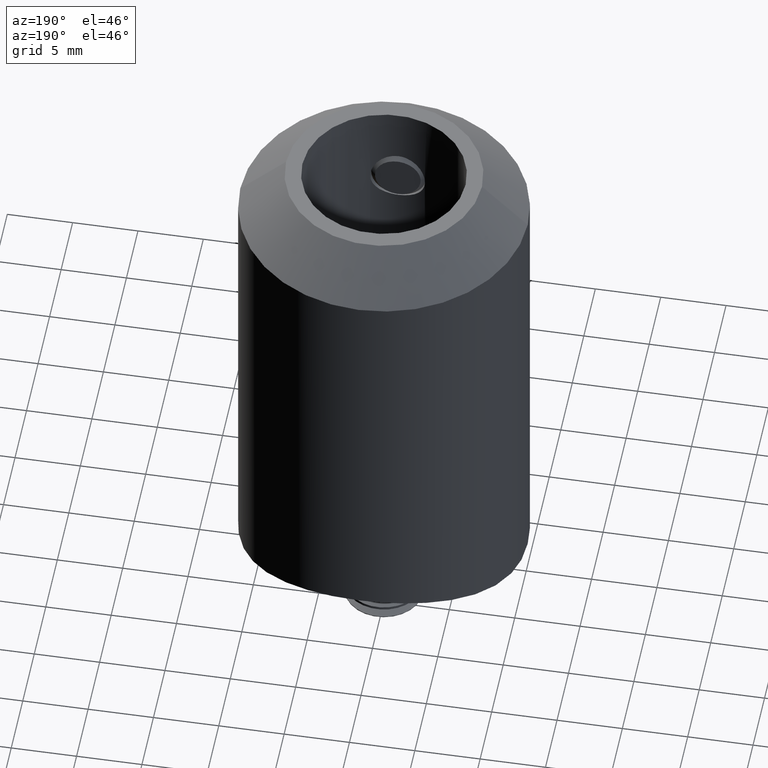
[diagram: clean part render]
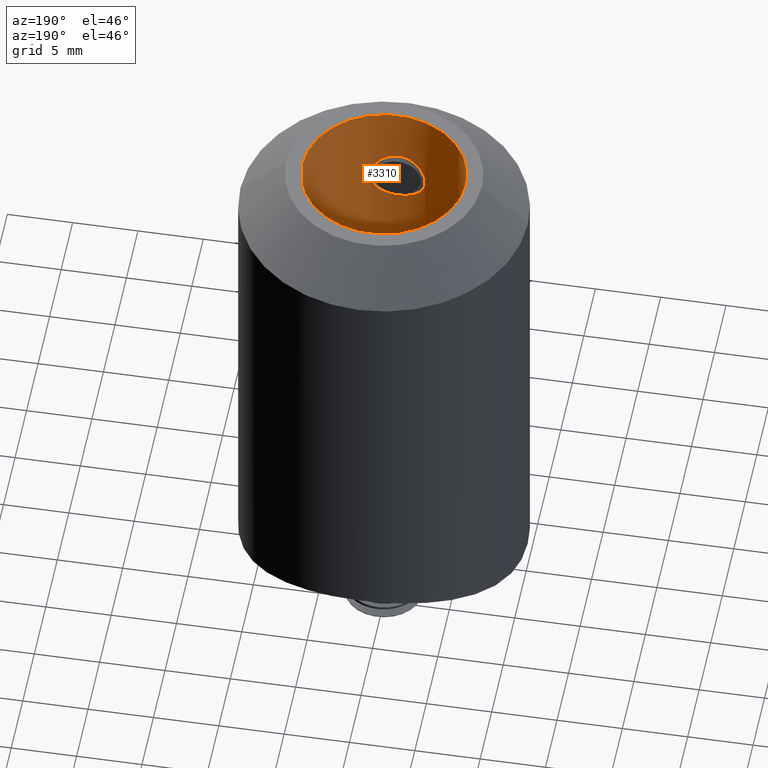
[diagram: same view with one face highlighted and labeled with its STEP entity id]
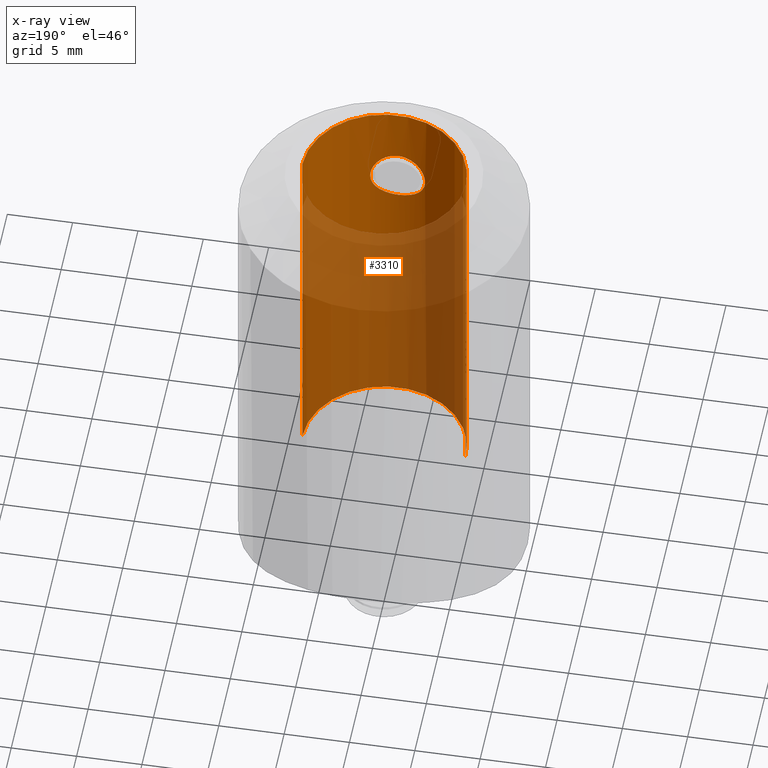
[diagram: x-ray of the same camera — body ghosted, the highlighted face saturated]
A machine part, auxiliary view. The second image highlights one B-rep face of the part: STEP entity #3310.
The next image is the same camera in x-ray: the body ghosted, the highlighted face saturated — about 68% of this face is hidden behind the body in this view.
In plain terms, the highlighted cylindrical surface (partial cylindrical patch) has radius 6.25 mm, axis along (-0, -0, -1).
Its self-contained STEP definition (entity closure, byte-faithful):
#91 = CARTESIAN_POINT ( 'NONE',  ( -6.250000000000000000, 0.000000000000000000, 0.000000000000000000 ) ) ;
#148 = LINE ( 'NONE', #17886, #17494 ) ;
#207 = VERTEX_POINT ( 'NONE', #1421 ) ;
#229 = CARTESIAN_POINT ( 'NONE',  ( -6.250000000000000000, -1.942524920933333049E-15, 0.000000000000000000 ) ) ;
#230 = EDGE_CURVE ( 'NONE', #7734, #1326, #16210, .T. ) ;
#264 = ORIENTED_EDGE ( 'NONE', *, *, #7275, .T. ) ;
#277 = CARTESIAN_POINT ( 'NONE',  ( 2.086020354233161900, -5.891675392019029012, 28.77823449408860768 ) ) ;
#295 = LINE ( 'NONE', #20920, #1605 ) ;
#319 = CARTESIAN_POINT ( 'NONE',  ( -6.249941087457022704, -0.02713675213675362588, 14.66018129006410398 ) ) ;
#354 = CARTESIAN_POINT ( 'NONE',  ( 0.6807774074885170057, -6.214132139573580460, 26.50865275162994905 ) ) ;
#363 = VECTOR ( 'NONE', #3498, 1000.000000000000000 ) ;
#383 = CARTESIAN_POINT ( 'NONE',  ( -6.250000000000000000, -1.152917720331509549E-15, 15.30872556765992698 ) ) ;
#392 = EDGE_CURVE ( 'NONE', #13887, #5053, #7921, .T. ) ;
#492 = ORIENTED_EDGE ( 'NONE', *, *, #21365, .T. ) ;
#550 = DIRECTION ( 'NONE',  ( -0.000000000000000000, -0.000000000000000000, -1.000000000000000000 ) ) ;
#711 = CARTESIAN_POINT ( 'NONE',  ( -6.250000000000000000, 0.000000000000000000, 0.000000000000000000 ) ) ;
#712 = CARTESIAN_POINT ( 'NONE',  ( -6.249999999999998224, -3.724880325109989135E-14, 20.90089087206140306 ) ) ;
#790 = LINE ( 'NONE', #16967, #9358 ) ;
#806 = VERTEX_POINT ( 'NONE', #8264 ) ;
#844 = CARTESIAN_POINT ( 'NONE',  ( 6.250000000000000000, 7.654042494670957606E-16, 0.000000000000000000 ) ) ;
#1003 = CARTESIAN_POINT ( 'NONE',  ( -6.250000000000000000, 0.000000000000000000, 5.499999999999998224 ) ) ;
#1005 = CARTESIAN_POINT ( 'NONE',  ( -6.250000000000000000, -2.031294470235149874E-15, 0.000000000000000000 ) ) ;
#1036 = CARTESIAN_POINT ( 'NONE',  ( -6.250000000000000000, -1.280788280683425470E-15, 12.28295940170940170 ) ) ;
#1188 = DIRECTION ( 'NONE',  ( -0.000000000000000000, -0.000000000000000000, -1.000000000000000000 ) ) ;
#1194 = EDGE_CURVE ( 'NONE', #17099, #18146, #18219, .T. ) ;
#1195 = B_SPLINE_CURVE_WITH_KNOTS ( 'NONE', 3,
 ( #14275, #6089, #7762, #6155, #17731, #7833, #19391, #8338, #11589, #21385, #19883, #3241, #18157, #14781, #21254, #5010, #8052, #8265, #16377, #19677, #11519, #13250, #4864, #19814, #19750, #11378, #1693, #3152, #4730, #13178, #10012, #9802 ),
 .UNSPECIFIED., .F., .F.,
 ( 4, 2, 2, 2, 2, 2, 2, 2, 2, 2, 2, 2, 2, 2, 2, 4 ),
 ( 1.156100791101205053E-18, 0.0004133772126065348991, 0.0008267544252130689308, 0.001240131637819602691, 0.001653508850426136994, 0.002480263275639197577, 0.002893640488245732313, 0.003307017700852267050, 0.003720394913458801786, 0.004133772126065336089, 0.004547149338671870392, 0.004960526551278404694, 0.005373903763884938997, 0.005787280976491473300, 0.006200658189098008470, 0.006614035401704542773 ),
 .UNSPECIFIED. ) ;
#1228 = CARTESIAN_POINT ( 'NONE',  ( -6.249945055681250139, -0.02622281934493954705, 17.96272777242339203 ) ) ;
#1245 = CARTESIAN_POINT ( 'NONE',  ( -6.250000000000000000, -2.266668275202088932E-15, 22.22857905982906956 ) ) ;
#1326 = VERTEX_POINT ( 'NONE', #17630 ) ;
#1376 = CARTESIAN_POINT ( 'NONE',  ( -6.249985271916317586, -0.01356837606837819725, 21.01124131944445139 ) ) ;
#1386 = B_SPLINE_CURVE_WITH_KNOTS ( 'NONE', 3,
 ( #7125, #20409, #10690, #9023 ),
 .UNSPECIFIED., .F., .F.,
 ( 4, 4 ),
 ( 0.000000000000000000, 0.0001370445804128089719 ),
 .UNSPECIFIED. ) ;
#1394 = VECTOR ( 'NONE', #3524, 1000.000000000000000 ) ;
#1420 = CARTESIAN_POINT ( 'NONE',  ( -6.249943906154057593, -0.02648757015918964258, 11.66743167533881831 ) ) ;
#1421 = CARTESIAN_POINT ( 'NONE',  ( -6.250000000000000000, -4.204135801831208538E-13, 16.42247196039267720 ) ) ;
#1458 = EDGE_CURVE ( 'NONE', #6805, #4404, #19014, .T. ) ;
#1465 = VERTEX_POINT ( 'NONE', #13142 ) ;
#1488 = B_SPLINE_CURVE_WITH_KNOTS ( 'NONE', 3,
 ( #7946, #1228, #21078, #16125 ),
 .UNSPECIFIED., .F., .F.,
 ( 4, 4 ),
 ( 0.000000000000000000, 0.0001370445804128096496 ),
 .UNSPECIFIED. ) ;
#1514 = CARTESIAN_POINT ( 'NONE',  ( -6.250000000000000000, -2.031294470235149874E-15, 20.38327991452992194 ) ) ;
#1525 = VECTOR ( 'NONE', #15609, 1000.000000000000000 ) ;
#1534 = VERTEX_POINT ( 'NONE', #3259 ) ;
#1554 = ORIENTED_EDGE ( 'NONE', *, *, #230, .F. ) ;
#1605 = VECTOR ( 'NONE', #4547, 1000.000000000000000 ) ;
#1644 = VERTEX_POINT ( 'NONE', #12294 ) ;
#1651 = EDGE_CURVE ( 'NONE', #8071, #20400, #13847, .T. ) ;
#1693 = CARTESIAN_POINT ( 'NONE',  ( -0.9329246632288857866, -6.181295248419109711, 30.38637383628275401 ) ) ;
#1786 = CARTESIAN_POINT ( 'NONE',  ( -6.250000000000000000, 0.000000000000000000, 0.000000000000000000 ) ) ;
#1820 = B_SPLINE_CURVE_WITH_KNOTS ( 'NONE', 3,
 ( #10675, #4153, #17372, #20672 ),
 .UNSPECIFIED., .F., .F.,
 ( 4, 4 ),
 ( 0.0003203089328097921337, 0.0004341580018001389490 ),
 .UNSPECIFIED. ) ;
#1846 = CARTESIAN_POINT ( 'NONE',  ( -6.250000000000000000, 0.000000000000000000, 0.000000000000000000 ) ) ;
#1895 = CARTESIAN_POINT ( 'NONE',  ( -6.250000000000000000, -5.417446971301949701E-13, 17.21357313100239494 ) ) ;
#1958 = VERTEX_POINT ( 'NONE', #13852 ) ;
#1982 = CARTESIAN_POINT ( 'NONE',  ( -6.250000000000000000, 0.000000000000000000, 0.000000000000000000 ) ) ;
#2020 = ORIENTED_EDGE ( 'NONE', *, *, #11682, .T. ) ;
#2039 = CARTESIAN_POINT ( 'NONE',  ( 0.5468688652298981934, -6.227495437057021910, 26.46779723067057688 ) ) ;
#2041 = DIRECTION ( 'NONE',  ( 0.000000000000000000, 0.000000000000000000, 1.000000000000000000 ) ) ;
#2115 = VERTEX_POINT ( 'NONE', #5405 ) ;
#2159 = CARTESIAN_POINT ( 'NONE',  ( -4.681114982632936812E-15, -6.250000000000000000, 26.40000000000000568 ) ) ;
#2201 = B_SPLINE_CURVE_WITH_KNOTS ( 'NONE', 3,
 ( #5750, #17319, #15894, #4245 ),
 .UNSPECIFIED., .F., .F.,
 ( 4, 4 ),
 ( 0.0002498041689422547803, 0.0003613808375801248448 ),
 .UNSPECIFIED. ) ;
#2217 = EDGE_CURVE ( 'NONE', #14885, #18146, #16415, .T. ) ;
#2233 = DIRECTION ( 'NONE',  ( -0.000000000000000000, -0.000000000000000000, -1.000000000000000000 ) ) ;
#2251 = CARTESIAN_POINT ( 'NONE',  ( 1.388929532163305280, -6.094521137183761539, 26.91905137954284655 ) ) ;
#2285 = ORIENTED_EDGE ( 'NONE', *, *, #10783, .T. ) ;
#2301 = CARTESIAN_POINT ( 'NONE',  ( -6.249985271916317586, -0.01356837606837819725, 21.01124131944445139 ) ) ;
#2367 = CARTESIAN_POINT ( 'NONE',  ( -6.250000000000000000, 0.000000000000000000, 0.000000000000000000 ) ) ;
#2374 = CARTESIAN_POINT ( 'NONE',  ( -6.250000000000000000, -0.01873701217902130553, 17.81439337356595232 ) ) ;
#2383 = VERTEX_POINT ( 'NONE', #4688 ) ;
#2465 = ORIENTED_EDGE ( 'NONE', *, *, #6430, .F. ) ;
#2523 = CARTESIAN_POINT ( 'NONE',  ( -6.249941087457022704, -0.02713675213675370568, 15.45774739583333535 ) ) ;
#2534 = CARTESIAN_POINT ( 'NONE',  ( -6.250000000000000000, -4.260575724689130706E-16, 16.95596604103382532 ) ) ;
#2546 = EDGE_CURVE ( 'NONE', #13887, #19140, #10996, .T. ) ;
#2587 = VECTOR ( 'NONE', #18853, 1000.000000000000000 ) ;
#2595 = CARTESIAN_POINT ( 'NONE',  ( -6.250000000000000000, 0.000000000000000000, 0.000000000000000000 ) ) ;
#2723 = LINE ( 'NONE', #20064, #12541 ) ;
#2749 = CARTESIAN_POINT ( 'NONE',  ( -6.250000000000000000, -1.942524920933333049E-15, 0.000000000000000000 ) ) ;
#2834 = EDGE_CURVE ( 'NONE', #19723, #17115, #17184, .T. ) ;
#2850 = VERTEX_POINT ( 'NONE', #20487 ) ;
#2879 = LINE ( 'NONE', #16390, #15549 ) ;
#2903 = LINE ( 'NONE', #14692, #19941 ) ;
#2918 = ORIENTED_EDGE ( 'NONE', *, *, #16151, .T. ) ;
#2964 = ORIENTED_EDGE ( 'NONE', *, *, #19077, .T. ) ;
#3008 = CARTESIAN_POINT ( 'NONE',  ( -6.250000000000000000, -2.130823964906883901E-15, 20.60037393162393471 ) ) ;
#3061 = B_SPLINE_CURVE_WITH_KNOTS ( 'NONE', 3,
 ( #12422, #2374, #4176, #9256 ),
 .UNSPECIFIED., .F., .F.,
 ( 4, 4 ),
 ( 0.0004328732615700520907, 0.0005840191481782737622 ),
 .UNSPECIFIED. ) ;
#3092 = VERTEX_POINT ( 'NONE', #16426 ) ;
#3112 = ORIENTED_EDGE ( 'NONE', *, *, #2217, .F. ) ;
#3132 = VERTEX_POINT ( 'NONE', #11151 ) ;
#3152 = CARTESIAN_POINT ( 'NONE',  ( -0.6800321976848793248, -6.214202731284300008, 30.49155991312958136 ) ) ;
#3155 = ORIENTED_EDGE ( 'NONE', *, *, #9074, .T. ) ;
#3156 = LINE ( 'NONE', #2749, #19656 ) ;
#3210 = DIRECTION ( 'NONE',  ( -0.000000000000000000, -0.000000000000000000, -1.000000000000000000 ) ) ;
#3217 = VERTEX_POINT ( 'NONE', #17898 ) ;
#3241 = CARTESIAN_POINT ( 'NONE',  ( -1.991178804980828332, -5.924589297797766996, 27.81891842917154634 ) ) ;
#3259 = CARTESIAN_POINT ( 'NONE',  ( -6.250000000000000000, -1.280788280683425470E-15, 12.37793803418803407 ) ) ;
#3310 = ADVANCED_FACE ( 'NONE', ( #10976, #4265 ), #6544, .F. ) ;
#3358 = EDGE_CURVE ( 'NONE', #11071, #806, #19222, .T. ) ;
#3375 = ORIENTED_EDGE ( 'NONE', *, *, #2546, .F. ) ;
#3407 = CARTESIAN_POINT ( 'NONE',  ( -6.250000000000000000, -0.01847626381545804108, 17.17373497681246519 ) ) ;
#3429 = CARTESIAN_POINT ( 'NONE',  ( -6.249999999999998224, -3.650712002666034461E-16, 14.51068119843388970 ) ) ;
#3450 = EDGE_CURVE ( 'NONE', #15469, #9133, #1195, .T. ) ;
#3498 = DIRECTION ( 'NONE',  ( -0.000000000000000000, -0.000000000000000000, -1.000000000000000000 ) ) ;
#3517 = EDGE_CURVE ( 'NONE', #7800, #3092, #4483, .T. ) ;
#3524 = DIRECTION ( 'NONE',  ( -0.000000000000000000, -0.000000000000000000, -1.000000000000000000 ) ) ;
#3625 = CARTESIAN_POINT ( 'NONE',  ( 2.031951277812363621, -5.910540909916313090, 29.04778586744502888 ) ) ;
#3629 = CARTESIAN_POINT ( 'NONE',  ( -6.250000000000000000, 0.000000000000000000, 0.000000000000000000 ) ) ;
#3639 = AXIS2_PLACEMENT_3D ( 'NONE', #10632, #12307, #18783 ) ;
#3662 = ORIENTED_EDGE ( 'NONE', *, *, #15350, .T. ) ;
#3804 = VERTEX_POINT ( 'NONE', #15105 ) ;
#3840 = CARTESIAN_POINT ( 'NONE',  ( -6.249985271916317586, -0.01356837606837843317, 23.38570713141026047 ) ) ;
#3842 = CARTESIAN_POINT ( 'NONE',  ( 1.283154409619683634, -6.117951371905980373, 30.16797572121374316 ) ) ;
#3893 = ORIENTED_EDGE ( 'NONE', *, *, #9483, .T. ) ;
#3916 = CARTESIAN_POINT ( 'NONE',  ( -6.249999999999998224, -2.002597645545979577E-15, 17.76709145484414876 ) ) ;
#3969 = CARTESIAN_POINT ( 'NONE',  ( -6.249946148398608514, -0.02597115256177571357, 15.50798380961689382 ) ) ;
#3985 = CARTESIAN_POINT ( 'NONE',  ( -6.250000000000000000, -0.009247728742931015516, 20.93680722941473249 ) ) ;
#4032 = DIRECTION ( 'NONE',  ( 0.000000000000000000, 0.000000000000000000, 1.000000000000000000 ) ) ;
#4034 = CARTESIAN_POINT ( 'NONE',  ( -6.250000000000000000, -1.942524920933333049E-15, 19.39278846153846558 ) ) ;
#4051 = VECTOR ( 'NONE', #5549, 1000.000000000000000 ) ;
#4086 = EDGE_CURVE ( 'NONE', #3217, #10141, #11482, .T. ) ;
#4107 = CARTESIAN_POINT ( 'NONE',  ( -6.250000000000000000, -5.394640609197127665E-13, 11.84049620792546698 ) ) ;
#4153 = CARTESIAN_POINT ( 'NONE',  ( -6.250000000000000000, -0.009631595882840694386, 24.57085252118570295 ) ) ;
#4176 = CARTESIAN_POINT ( 'NONE',  ( -6.249943101731514794, -0.02667283895925389586, 17.86538791324039011 ) ) ;
#4181 = CARTESIAN_POINT ( 'NONE',  ( -6.249943101731514794, -0.02667283895925359402, 16.23718278503525880 ) ) ;
#4221 = ORIENTED_EDGE ( 'NONE', *, *, #18709, .F. ) ;
#4245 = CARTESIAN_POINT ( 'NONE',  ( -6.249985271916317586, -0.01356837606837843317, 23.38570713141026047 ) ) ;
#4249 = LINE ( 'NONE', #10599, #20509 ) ;
#4263 = ORIENTED_EDGE ( 'NONE', *, *, #7535, .F. ) ;
#4265 = FACE_OUTER_BOUND ( 'NONE', #17940, .T. ) ;
#4322 = CARTESIAN_POINT ( 'NONE',  ( -6.249945055681250139, -0.02622281934493955399, 14.70631751601313120 ) ) ;
#4325 = LINE ( 'NONE', #18836, #5865 ) ;
#4386 = ORIENTED_EDGE ( 'NONE', *, *, #19888, .F. ) ;
#4404 = VERTEX_POINT ( 'NONE', #11584 ) ;
#4483 = LINE ( 'NONE', #1982, #363 ) ;
#4547 = DIRECTION ( 'NONE',  ( 0.000000000000000000, 0.000000000000000000, 1.000000000000000000 ) ) ;
#4659 = B_SPLINE_CURVE_WITH_KNOTS ( 'NONE', 3,
 ( #383, #13414, #6892, #18468 ),
 .UNSPECIFIED., .F., .F.,
 ( 4, 4 ),
 ( 0.0004033329556207923571, 0.0005545384032736206965 ),
 .UNSPECIFIED. ) ;
#4688 = CARTESIAN_POINT ( 'NONE',  ( -6.250000000000001776, -1.361487870957804294E-15, 13.69407051282051135 ) ) ;
#4730 = CARTESIAN_POINT ( 'NONE',  ( -0.5489401249491113743, -6.227337935327997620, 30.53172353266019456 ) ) ;
#4776 = VECTOR ( 'NONE', #18862, 1000.000000000000000 ) ;
#4854 = CARTESIAN_POINT ( 'NONE',  ( -3.232964290594066295E-15, -6.250000000000000000, 30.59999999999999432 ) ) ;
#4864 = CARTESIAN_POINT ( 'NONE',  ( -1.581024548620139969, -6.047541939429930125, 29.88889684463689989 ) ) ;
#4944 = B_SPLINE_CURVE_WITH_KNOTS ( 'NONE', 3,
 ( #2301, #5755, #7489, #10770 ),
 .UNSPECIFIED., .F., .F.,
 ( 4, 4 ),
 ( 0.000000000000000000, 0.0001083318546686084854 ),
 .UNSPECIFIED. ) ;
#5010 = CARTESIAN_POINT ( 'NONE',  ( -2.100068717040726618, -5.886612896145843266, 28.63707101292968460 ) ) ;
#5019 = VERTEX_POINT ( 'NONE', #3840 ) ;
#5035 = VECTOR ( 'NONE', #6622, 1000.000000000000000 ) ;
#5053 = VERTEX_POINT ( 'NONE', #8912 ) ;
#5081 = EDGE_CURVE ( 'NONE', #3804, #15195, #14652, .T. ) ;
#5151 = VERTEX_POINT ( 'NONE', #4034 ) ;
#5155 = CARTESIAN_POINT ( 'NONE',  ( -6.250000000000000000, -2.559876786532332216E-15, 0.000000000000000000 ) ) ;
#5161 = ORIENTED_EDGE ( 'NONE', *, *, #5903, .T. ) ;
#5234 = DIRECTION ( 'NONE',  ( 0.000000000000000000, 0.000000000000000000, 1.000000000000000000 ) ) ;
#5273 = CARTESIAN_POINT ( 'NONE',  ( 2.100018874674550950, -5.886630676916387195, 28.63809192433770434 ) ) ;
#5301 = CARTESIAN_POINT ( 'NONE',  ( -6.249985271916317586, -0.01356837606837855807, 24.64820212339743932 ) ) ;
#5405 = CARTESIAN_POINT ( 'NONE',  ( -6.250000000000000000, -1.361487870957804294E-15, 12.97494658119657984 ) ) ;
#5408 = CARTESIAN_POINT ( 'NONE',  ( 1.388283807668770686, -6.094680465868980157, 30.08160507440587139 ) ) ;
#5549 = DIRECTION ( 'NONE',  ( -0.000000000000000000, -0.000000000000000000, -1.000000000000000000 ) ) ;
#5573 = DIRECTION ( 'NONE',  ( 0.000000000000000000, 0.000000000000000000, 1.000000000000000000 ) ) ;
#5597 = VECTOR ( 'NONE', #5573, 1000.000000000000000 ) ;
#5599 = DIRECTION ( 'NONE',  ( -0.000000000000000000, -0.000000000000000000, -1.000000000000000000 ) ) ;
#5674 = CARTESIAN_POINT ( 'NONE',  ( -6.250000000000000000, -2.266668275202088932E-15, 0.000000000000000000 ) ) ;
#5750 = CARTESIAN_POINT ( 'NONE',  ( -6.250000000000000000, -3.662496348544709915E-14, 23.27535668402721214 ) ) ;
#5755 = CARTESIAN_POINT ( 'NONE',  ( -6.249987420524911741, -0.01257866499286665329, 21.04769291354087812 ) ) ;
#5768 = DIRECTION ( 'NONE',  ( 0.000000000000000000, 0.000000000000000000, 1.000000000000000000 ) ) ;
#5800 = CARTESIAN_POINT ( 'NONE',  ( -6.250000000000000000, 0.000000000000000000, 0.000000000000000000 ) ) ;
#5863 = ORIENTED_EDGE ( 'NONE', *, *, #8388, .T. ) ;
#5865 = VECTOR ( 'NONE', #10481, 1000.000000000000000 ) ;
#5868 = DIRECTION ( 'NONE',  ( -0.000000000000000000, -0.000000000000000000, -1.000000000000000000 ) ) ;
#5903 = EDGE_CURVE ( 'NONE', #14885, #8415, #295, .T. ) ;
#5923 = ORIENTED_EDGE ( 'NONE', *, *, #9455, .T. ) ;
#5961 = CARTESIAN_POINT ( 'NONE',  ( -6.249944342028269872, -0.02638718275373420560, 11.75639544814020532 ) ) ;
#6071 = B_SPLINE_CURVE_WITH_KNOTS ( 'NONE', 3,
 ( #2523, #3969, #14153, #8966 ),
 .UNSPECIFIED., .F., .F.,
 ( 4, 4 ),
 ( 0.000000000000000000, 0.0001492847478538085189 ),
 .UNSPECIFIED. ) ;
#6089 = CARTESIAN_POINT ( 'NONE',  ( -0.1398491717611065888, -6.250000000000000888, 26.40000000000000568 ) ) ;
#6095 = EDGE_CURVE ( 'NONE', #17880, #5053, #2903, .T. ) ;
#6119 = CARTESIAN_POINT ( 'NONE',  ( -6.249999999999998224, -0.01873701217901987959, 14.55798311715569682 ) ) ;
#6155 = CARTESIAN_POINT ( 'NONE',  ( -0.5470025092208135042, -6.227485096039450774, 26.46782871189566677 ) ) ;
#6199 = DIRECTION ( 'NONE',  ( -0.000000000000000000, -0.000000000000000000, -1.000000000000000000 ) ) ;
#6362 = LINE ( 'NONE', #8999, #5597 ) ;
#6415 = DIRECTION ( 'NONE',  ( -0.000000000000000000, -0.000000000000000000, -1.000000000000000000 ) ) ;
#6430 = EDGE_CURVE ( 'NONE', #15507, #7800, #11687, .T. ) ;
#6456 = DIRECTION ( 'NONE',  ( -0.000000000000000000, -0.000000000000000000, -1.000000000000000000 ) ) ;
#6473 = EDGE_CURVE ( 'NONE', #2850, #8415, #13492, .T. ) ;
#6544 = CYLINDRICAL_SURFACE ( 'NONE', #15631, 6.250000000000000000 ) ;
#6622 = DIRECTION ( 'NONE',  ( -0.000000000000000000, -0.000000000000000000, -1.000000000000000000 ) ) ;
#6653 = CARTESIAN_POINT ( 'NONE',  ( -6.250000000000000000, -1.942524920933333049E-15, 19.48776709401709795 ) ) ;
#6691 = EDGE_LOOP ( 'NONE', ( #14865, #7550 ) ) ;
#6695 = LINE ( 'NONE', #844, #12900 ) ;
#6805 = VERTEX_POINT ( 'NONE', #20052 ) ;
#6811 = VECTOR ( 'NONE', #550, 1000.000000000000000 ) ;
#6817 = CARTESIAN_POINT ( 'NONE',  ( -6.250000000000000000, -2.395787619641094577E-15, 23.97889957264957417 ) ) ;
#6845 = VECTOR ( 'NONE', #9155, 1000.000000000000000 ) ;
#6892 = CARTESIAN_POINT ( 'NONE',  ( -6.249947452229577927, -0.02567086361504802502, 15.40687596471949483 ) ) ;
#6933 = CARTESIAN_POINT ( 'NONE',  ( 1.679134496625105388, -6.023525129769473629, 29.79063298823878014 ) ) ;
#6935 = CARTESIAN_POINT ( 'NONE',  ( -6.250000000000000000, -2.031294470235149874E-15, 19.70486111111111782 ) ) ;
#7010 = CARTESIAN_POINT ( 'NONE',  ( -6.250000000000000000, -2.266668275202088932E-15, 21.60443376068377219 ) ) ;
#7125 = CARTESIAN_POINT ( 'NONE',  ( -6.249941087457022704, -0.02713675213675378894, 16.28838641826922995 ) ) ;
#7231 = ORIENTED_EDGE ( 'NONE', *, *, #15879, .T. ) ;
#7275 = EDGE_CURVE ( 'NONE', #6805, #11673, #3156, .T. ) ;
#7280 = CARTESIAN_POINT ( 'NONE',  ( -6.250000000000000000, 0.000000000000000000, 0.000000000000000000 ) ) ;
#7313 = LINE ( 'NONE', #16746, #14817 ) ;
#7324 = DIRECTION ( 'NONE',  ( -0.000000000000000000, -0.000000000000000000, -1.000000000000000000 ) ) ;
#7325 = DIRECTION ( 'NONE',  ( -0.000000000000000000, -0.000000000000000000, -1.000000000000000000 ) ) ;
#7332 = VECTOR ( 'NONE', #9160, 1000.000000000000000 ) ;
#7348 = DIRECTION ( 'NONE',  ( -0.000000000000000000, -0.000000000000000000, -1.000000000000000000 ) ) ;
#7376 = CARTESIAN_POINT ( 'NONE',  ( -6.249987163406165891, -0.01269710130100408507, 20.97384982570186196 ) ) ;
#7489 = CARTESIAN_POINT ( 'NONE',  ( -6.250000000000006217, -0.009182073190710548713, 21.08373957310829283 ) ) ;
#7526 = EDGE_CURVE ( 'NONE', #8485, #7595, #9604, .T. ) ;
#7535 = EDGE_CURVE ( 'NONE', #8559, #15212, #2879, .T. ) ;
#7550 = ORIENTED_EDGE ( 'NONE', *, *, #17352, .F. ) ;
#7556 = ORIENTED_EDGE ( 'NONE', *, *, #10018, .F. ) ;
#7571 = CARTESIAN_POINT ( 'NONE',  ( -6.250000000000000000, -1.503906997850010252E-15, 16.13888632663901745 ) ) ;
#7595 = VERTEX_POINT ( 'NONE', #10258 ) ;
#7608 = B_SPLINE_CURVE_WITH_KNOTS ( 'NONE', 3,
 ( #14007, #5961, #20777, #4107 ),
 .UNSPECIFIED., .F., .F.,
 ( 4, 4 ),
 ( 0.000000000000000000, 0.0001316155542375974867 ),
 .UNSPECIFIED. ) ;
#7631 = EDGE_CURVE ( 'NONE', #13026, #20400, #790, .T. ) ;
#7722 = CARTESIAN_POINT ( 'NONE',  ( -6.250000000000000000, -2.266668275202088932E-15, 21.69941239316240456 ) ) ;
#7734 = VERTEX_POINT ( 'NONE', #15513 ) ;
#7762 = CARTESIAN_POINT ( 'NONE',  ( -0.2771663449979559490, -6.245315138861119664, 26.41382869675332756 ) ) ;
#7800 = VERTEX_POINT ( 'NONE', #9446 ) ;
#7833 = CARTESIAN_POINT ( 'NONE',  ( -0.9348764159771587590, -6.181011141645032403, 26.61454911738538343 ) ) ;
#7863 = VERTEX_POINT ( 'NONE', #19604 ) ;
#7871 = LINE ( 'NONE', #229, #20009 ) ;
#7889 = VECTOR ( 'NONE', #7324, 1000.000000000000000 ) ;
#7921 = LINE ( 'NONE', #10713, #19555 ) ;
#7940 = CARTESIAN_POINT ( 'NONE',  ( -6.249999999999998224, -3.650712002666034461E-16, 14.51068119843388970 ) ) ;
#7946 = CARTESIAN_POINT ( 'NONE',  ( -6.249941087457022704, -0.02713675213675394507, 17.91659154647436125 ) ) ;
#8014 = VERTEX_POINT ( 'NONE', #6653 ) ;
#8052 = CARTESIAN_POINT ( 'NONE',  ( -2.086156781590802645, -5.891627256037642368, 28.77737804672436894 ) ) ;
#8071 = VERTEX_POINT ( 'NONE', #7010 ) ;
#8100 = EDGE_CURVE ( 'NONE', #12127, #207, #16324, .T. ) ;
#8222 = LINE ( 'NONE', #1005, #10038 ) ;
#8264 = CARTESIAN_POINT ( 'NONE',  ( -6.250000000000000000, -4.183739248461324986E-14, 15.60445719933126618 ) ) ;
#8265 = CARTESIAN_POINT ( 'NONE',  ( -2.032022183795942016, -5.910516702118698618, 29.04760801924651048 ) ) ;
#8328 = ORIENTED_EDGE ( 'NONE', *, *, #20890, .F. ) ;
#8338 = CARTESIAN_POINT ( 'NONE',  ( -1.282672282118496154, -6.118060501284898756, 26.83161588268564302 ) ) ;
#8350 = DIRECTION ( 'NONE',  ( 0.000000000000000000, 0.000000000000000000, 1.000000000000000000 ) ) ;
#8364 = VECTOR ( 'NONE', #9465, 1000.000000000000000 ) ;
#8388 = EDGE_CURVE ( 'NONE', #7734, #13633, #4659, .T. ) ;
#8415 = VERTEX_POINT ( 'NONE', #16675 ) ;
#8450 = CARTESIAN_POINT ( 'NONE',  ( -6.250000000000007994, -0.009182073190707589275, 23.45820538507413033 ) ) ;
#8485 = VERTEX_POINT ( 'NONE', #1036 ) ;
#8535 = ORIENTED_EDGE ( 'NONE', *, *, #19718, .F. ) ;
#8559 = VERTEX_POINT ( 'NONE', #3008 ) ;
#8619 = CARTESIAN_POINT ( 'NONE',  ( 1.677601154600719013, -6.023902963499859098, 27.20781212300785867 ) ) ;
#8643 = ORIENTED_EDGE ( 'NONE', *, *, #18637, .T. ) ;
#8694 = CARTESIAN_POINT ( 'NONE',  ( 0.9336400211197708465, -6.181192761147428882, 30.38604162753917137 ) ) ;
#8810 = EDGE_CURVE ( 'NONE', #14980, #7863, #9584, .T. ) ;
#8912 = CARTESIAN_POINT ( 'NONE',  ( -6.250000000000000000, -2.395787619641094577E-15, 24.07387820512821008 ) ) ;
#8927 = VECTOR ( 'NONE', #15698, 1000.000000000000000 ) ;
#8966 = CARTESIAN_POINT ( 'NONE',  ( -6.250000000000000000, -4.183739248461324986E-14, 15.60445719933126618 ) ) ;
#8999 = CARTESIAN_POINT ( 'NONE',  ( -6.250000000000000000, -2.130823964906883901E-15, 0.000000000000000000 ) ) ;
#9023 = CARTESIAN_POINT ( 'NONE',  ( -6.250000000000000000, -4.204135801831208538E-13, 16.42247196039267720 ) ) ;
#9044 = CARTESIAN_POINT ( 'NONE',  ( -6.250000000000000000, 0.000000000000000000, 0.000000000000000000 ) ) ;
#9074 = EDGE_CURVE ( 'NONE', #10183, #4404, #1488, .T. ) ;
#9133 = VERTEX_POINT ( 'NONE', #21222 ) ;
#9155 = DIRECTION ( 'NONE',  ( -0.000000000000000000, -0.000000000000000000, -1.000000000000000000 ) ) ;
#9160 = DIRECTION ( 'NONE',  ( -0.000000000000000000, -0.000000000000000000, -1.000000000000000000 ) ) ;
#9256 = CARTESIAN_POINT ( 'NONE',  ( -6.249941087457022704, -0.02713675213675394507, 17.91659154647436125 ) ) ;
#9262 = ORIENTED_EDGE ( 'NONE', *, *, #1194, .T. ) ;
#9301 = CARTESIAN_POINT ( 'NONE',  ( -6.250000000000000000, -2.366197769873822171E-15, 23.06981837606837971 ) ) ;
#9343 = VECTOR ( 'NONE', #20307, 1000.000000000000000 ) ;
#9358 = VECTOR ( 'NONE', #15372, 1000.000000000000000 ) ;
#9414 = EDGE_CURVE ( 'NONE', #3804, #13422, #20397, .T. ) ;
#9437 = ORIENTED_EDGE ( 'NONE', *, *, #9636, .T. ) ;
#9446 = CARTESIAN_POINT ( 'NONE',  ( -6.250000000000000000, 0.000000000000000000, 35.00000000000000000 ) ) ;
#9455 = EDGE_CURVE ( 'NONE', #15195, #1465, #4944, .T. ) ;
#9465 = DIRECTION ( 'NONE',  ( -0.000000000000000000, -0.000000000000000000, -1.000000000000000000 ) ) ;
#9483 = EDGE_CURVE ( 'NONE', #15507, #17099, #6695, .T. ) ;
#9550 = CARTESIAN_POINT ( 'NONE',  ( -6.249941087457022704, -0.02713675213675362588, 14.66018129006410398 ) ) ;
#9584 = LINE ( 'NONE', #9044, #2587 ) ;
#9586 = ORIENTED_EDGE ( 'NONE', *, *, #20760, .T. ) ;
#9596 = CARTESIAN_POINT ( 'NONE',  ( -6.249941087457022704, -0.02713675213675333445, 11.71202757745726331 ) ) ;
#9604 = LINE ( 'NONE', #1786, #15026 ) ;
#9621 = DIRECTION ( 'NONE',  ( -1.000000000000000000, 0.000000000000000000, 0.000000000000000000 ) ) ;
#9636 = EDGE_CURVE ( 'NONE', #1958, #3132, #16878, .T. ) ;
#9693 = ORIENTED_EDGE ( 'NONE', *, *, #19148, .T. ) ;
#9696 = VERTEX_POINT ( 'NONE', #11464 ) ;
#9779 = ORIENTED_EDGE ( 'NONE', *, *, #10498, .T. ) ;
#9802 = CARTESIAN_POINT ( 'NONE',  ( -3.232964290594066295E-15, -6.250000000000000000, 30.59999999999999432 ) ) ;
#9924 = CARTESIAN_POINT ( 'NONE',  ( -6.249944342028268984, -0.02638718275373492725, 17.12947237121713329 ) ) ;
#10012 = CARTESIAN_POINT ( 'NONE',  ( -0.1377617610087926991, -6.250000000000001776, 30.60000000000001208 ) ) ;
#10018 = EDGE_CURVE ( 'NONE', #12704, #2383, #11091, .T. ) ;
#10038 = VECTOR ( 'NONE', #17626, 1000.000000000000000 ) ;
#10058 = VERTEX_POINT ( 'NONE', #19166 ) ;
#10141 = VERTEX_POINT ( 'NONE', #1245 ) ;
#10183 = VERTEX_POINT ( 'NONE', #17785 ) ;
#10193 = DIRECTION ( 'NONE',  ( 0.000000000000000000, 0.000000000000000000, 1.000000000000000000 ) ) ;
#10204 = VECTOR ( 'NONE', #7348, 1000.000000000000000 ) ;
#10224 = CARTESIAN_POINT ( 'NONE',  ( 0.5535094440402353877, -6.230685183296444052, 30.54425393108256159 ) ) ;
#10242 = EDGE_CURVE ( 'NONE', #14827, #18305, #16775, .T. ) ;
#10258 = CARTESIAN_POINT ( 'NONE',  ( -6.250000000000000000, -5.394640609197127665E-13, 11.84049620792546698 ) ) ;
#10323 = ORIENTED_EDGE ( 'NONE', *, *, #20611, .T. ) ;
#10361 = CARTESIAN_POINT ( 'NONE',  ( 0.2771608814677346544, -6.245313988912636560, 26.41383234201753538 ) ) ;
#10481 = DIRECTION ( 'NONE',  ( 0.000000000000000000, 0.000000000000000000, 1.000000000000000000 ) ) ;
#10498 = EDGE_CURVE ( 'NONE', #21347, #18305, #8222, .T. ) ;
#10513 = CARTESIAN_POINT ( 'NONE',  ( 2.032188127562319924, -5.910459894465165398, 27.95285669878814616 ) ) ;
#10526 = LINE ( 'NONE', #2367, #14144 ) ;
#10530 = B_SPLINE_CURVE_WITH_KNOTS ( 'NONE', 3,
 ( #7940, #6119, #13068, #9550 ),
 .UNSPECIFIED., .F., .F.,
 ( 4, 4 ),
 ( 0.0004328732615700767563, 0.0005840191481783224428 ),
 .UNSPECIFIED. ) ;
#10566 = ORIENTED_EDGE ( 'NONE', *, *, #20930, .F. ) ;
#10599 = CARTESIAN_POINT ( 'NONE',  ( -6.250000000000000000, 0.000000000000000000, 0.000000000000000000 ) ) ;
#10632 = CARTESIAN_POINT ( 'NONE',  ( 0.000000000000000000, 0.000000000000000000, 35.00000000000000000 ) ) ;
#10670 = VECTOR ( 'NONE', #17400, 1000.000000000000000 ) ;
#10675 = CARTESIAN_POINT ( 'NONE',  ( -6.250000000000000000, -8.597843665307237883E-14, 24.53352954719663614 ) ) ;
#10690 = CARTESIAN_POINT ( 'NONE',  ( -6.249999999999999112, -0.01874949122127342674, 16.38059750729106412 ) ) ;
#10713 = CARTESIAN_POINT ( 'NONE',  ( -6.250000000000000000, -2.395787619641094577E-15, 0.000000000000000000 ) ) ;
#10770 = CARTESIAN_POINT ( 'NONE',  ( -6.250000000000000000, 4.404129174523895018E-12, 21.11881288291180780 ) ) ;
#10774 = CARTESIAN_POINT ( 'NONE',  ( -6.250000000000000000, -0.01873701217902744645, 16.18618824536082101 ) ) ;
#10783 = EDGE_CURVE ( 'NONE', #18546, #1326, #11886, .T. ) ;
#10850 = VERTEX_POINT ( 'NONE', #20022 ) ;
#10976 = FACE_BOUND ( 'NONE', #6691, .T. ) ;
#10996 = LINE ( 'NONE', #19986, #1394 ) ;
#11028 = CARTESIAN_POINT ( 'NONE',  ( -6.250000000000000000, -1.070969345970040410E-15, 10.26127136752137048 ) ) ;
#11039 = CARTESIAN_POINT ( 'NONE',  ( -6.250000000000000000, 0.000000000000000000, 0.000000000000000000 ) ) ;
#11056 = CARTESIAN_POINT ( 'NONE',  ( -6.250000000000000000, 0.000000000000000000, 0.000000000000000000 ) ) ;
#11071 = VERTEX_POINT ( 'NONE', #15012 ) ;
#11091 = LINE ( 'NONE', #5800, #21397 ) ;
#11151 = CARTESIAN_POINT ( 'NONE',  ( -6.249941087457022704, -0.02713675213675333445, 11.71202757745726331 ) ) ;
#11257 = LINE ( 'NONE', #14261, #6845 ) ;
#11299 = EDGE_CURVE ( 'NONE', #14827, #15212, #4325, .T. ) ;
#11378 = CARTESIAN_POINT ( 'NONE',  ( -1.055817361523854192, -6.161256958402389294, 30.32041301452059656 ) ) ;
#11442 = VECTOR ( 'NONE', #8350, 1000.000000000000000 ) ;
#11464 = CARTESIAN_POINT ( 'NONE',  ( -6.249985271916317586, -0.01356837606837855807, 24.64820212339743932 ) ) ;
#11482 = LINE ( 'NONE', #11056, #8364 ) ;
#11519 = CARTESIAN_POINT ( 'NONE',  ( -1.820502482735359751, -5.979507314787017691, 29.55562087771018298 ) ) ;
#11531 = ORIENTED_EDGE ( 'NONE', *, *, #16727, .T. ) ;
#11584 = CARTESIAN_POINT ( 'NONE',  ( -6.250000000000000000, -4.202026689792545330E-13, 18.05067708859780495 ) ) ;
#11589 = CARTESIAN_POINT ( 'NONE',  ( -1.389530664248857628, -6.094381485851283031, 26.91959552000053790 ) ) ;
#11673 = VERTEX_POINT ( 'NONE', #21258 ) ;
#11682 = EDGE_CURVE ( 'NONE', #14980, #17115, #148, .T. ) ;
#11687 = CIRCLE ( 'NONE', #3639, 6.250000000000000000 ) ;
#11694 = LINE ( 'NONE', #91, #14540 ) ;
#11732 = ORIENTED_EDGE ( 'NONE', *, *, #11299, .T. ) ;
#11749 = ORIENTED_EDGE ( 'NONE', *, *, #1651, .T. ) ;
#11851 = ORIENTED_EDGE ( 'NONE', *, *, #1458, .F. ) ;
#11868 = CARTESIAN_POINT ( 'NONE',  ( 1.991316365880859918, -5.924544185841607913, 27.81925910369733757 ) ) ;
#11886 = B_SPLINE_CURVE_WITH_KNOTS ( 'NONE', 3,
 ( #14225, #4322, #16106, #14507 ),
 .UNSPECIFIED., .F., .F.,
 ( 4, 4 ),
 ( 0.000000000000000000, 0.0001370445804128000815 ),
 .UNSPECIFIED. ) ;
#11905 = EDGE_CURVE ( 'NONE', #8559, #13422, #6362, .T. ) ;
#11946 = CARTESIAN_POINT ( 'NONE',  ( 1.833429633678348436, -5.976060114691638780, 27.44003211084209326 ) ) ;
#11947 = CARTESIAN_POINT ( 'NONE',  ( -6.250000000000000000, -2.266668275202088932E-15, 0.000000000000000000 ) ) ;
#12120 = CARTESIAN_POINT ( 'NONE',  ( 0.000000000000000000, 0.000000000000000000, 0.000000000000000000 ) ) ;
#12127 = VERTEX_POINT ( 'NONE', #2534 ) ;
#12193 = CARTESIAN_POINT ( 'NONE',  ( -6.249987215373157490, -0.01267316380663488160, 24.68655066500394213 ) ) ;
#12275 = LINE ( 'NONE', #13984, #7332 ) ;
#12294 = CARTESIAN_POINT ( 'NONE',  ( -6.250000000000000000, -2.559876786532332216E-15, 25.59353632478633145 ) ) ;
#12307 = DIRECTION ( 'NONE',  ( -0.000000000000000000, -0.000000000000000000, -1.000000000000000000 ) ) ;
#12342 = CARTESIAN_POINT ( 'NONE',  ( -6.249941087457022704, -0.02713675213675386527, 17.08510450053419305 ) ) ;
#12387 = VECTOR ( 'NONE', #3210, 1000.000000000000000 ) ;
#12422 = CARTESIAN_POINT ( 'NONE',  ( -6.249999999999998224, -2.002597645545979577E-15, 17.76709145484414876 ) ) ;
#12430 = CARTESIAN_POINT ( 'NONE',  ( -6.250000000000000000, -2.266668275202088932E-15, 0.000000000000000000 ) ) ;
#12541 = VECTOR ( 'NONE', #10193, 1000.000000000000000 ) ;
#12612 = ORIENTED_EDGE ( 'NONE', *, *, #20429, .T. ) ;
#12618 = CARTESIAN_POINT ( 'NONE',  ( -6.249941087457022704, -0.02713675213675370568, 15.45774739583333535 ) ) ;
#12704 = VERTEX_POINT ( 'NONE', #3429 ) ;
#12764 = LINE ( 'NONE', #11947, #20755 ) ;
#12900 = VECTOR ( 'NONE', #2233, 1000.000000000000000 ) ;
#12989 = VERTEX_POINT ( 'NONE', #3916 ) ;
#13026 = VERTEX_POINT ( 'NONE', #20513 ) ;
#13068 = CARTESIAN_POINT ( 'NONE',  ( -6.249943101731514794, -0.02667283895925342749, 14.60897765683013283 ) ) ;
#13142 = CARTESIAN_POINT ( 'NONE',  ( -6.250000000000000000, 4.404129174523895018E-12, 21.11881288291180780 ) ) ;
#13178 = CARTESIAN_POINT ( 'NONE',  ( -0.2769699878207707577, -6.245347119848571715, 30.58627021255417588 ) ) ;
#13225 = EDGE_CURVE ( 'NONE', #12704, #18546, #10530, .T. ) ;
#13228 = ORIENTED_EDGE ( 'NONE', *, *, #17803, .T. ) ;
#13250 = CARTESIAN_POINT ( 'NONE',  ( -1.668831644596322938, -6.023598422806003327, 29.78201625149495158 ) ) ;
#13306 = LINE ( 'NONE', #20642, #8927 ) ;
#13315 = CARTESIAN_POINT ( 'NONE',  ( 0.2754539012555117239, -6.249999999999999112, 30.59999999999999432 ) ) ;
#13380 = CARTESIAN_POINT ( 'NONE',  ( -6.250000000000000000, -8.597843665307237883E-14, 24.53352954719663614 ) ) ;
#13414 = CARTESIAN_POINT ( 'NONE',  ( -6.250000000000000000, -0.01860986523576161830, 15.35572893338322231 ) ) ;
#13422 = VERTEX_POINT ( 'NONE', #15168 ) ;
#13437 = CARTESIAN_POINT ( 'NONE',  ( -6.250000000000000000, -9.902697556956613883E-16, 9.230074786324786729 ) ) ;
#13448 = B_SPLINE_CURVE_WITH_KNOTS ( 'NONE', 3,
 ( #5301, #12193, #20115, #18537 ),
 .UNSPECIFIED., .F., .F.,
 ( 4, 4 ),
 ( 0.000000000000000000, 0.0001135698750731767992 ),
 .UNSPECIFIED. ) ;
#13492 = LINE ( 'NONE', #2595, #14280 ) ;
#13521 = EDGE_CURVE ( 'NONE', #2115, #2383, #2723, .T. ) ;
#13580 = EDGE_CURVE ( 'NONE', #19723, #5019, #2201, .T. ) ;
#13605 = CARTESIAN_POINT ( 'NONE',  ( 0.1398138339219174853, -6.250000000000001776, 26.40000000000001279 ) ) ;
#13633 = VERTEX_POINT ( 'NONE', #12618 ) ;
#13745 = CARTESIAN_POINT ( 'NONE',  ( -4.681114982632936812E-15, -6.250000000000000000, 26.40000000000000568 ) ) ;
#13831 = VERTEX_POINT ( 'NONE', #17805 ) ;
#13847 = LINE ( 'NONE', #5674, #20291 ) ;
#13852 = CARTESIAN_POINT ( 'NONE',  ( -6.250000000000000000, 3.324604317973128831E-17, 11.58288911795689735 ) ) ;
#13872 = CARTESIAN_POINT ( 'NONE',  ( 6.250000000000000000, 7.654042494670957606E-16, 35.00000000000000000 ) ) ;
#13887 = VERTEX_POINT ( 'NONE', #6817 ) ;
#13930 = CARTESIAN_POINT ( 'NONE',  ( -6.250000000000000000, 0.000000000000000000, 0.000000000000000000 ) ) ;
#13984 = CARTESIAN_POINT ( 'NONE',  ( -6.250000000000000000, 0.000000000000000000, 0.000000000000000000 ) ) ;
#14007 = CARTESIAN_POINT ( 'NONE',  ( -6.249941087457022704, -0.02713675213675333445, 11.71202757745726331 ) ) ;
#14013 = ORIENTED_EDGE ( 'NONE', *, *, #11905, .T. ) ;
#14106 = ORIENTED_EDGE ( 'NONE', *, *, #8100, .F. ) ;
#14144 = VECTOR ( 'NONE', #5599, 1000.000000000000000 ) ;
#14153 = CARTESIAN_POINT ( 'NONE',  ( -6.250000000000000000, -0.01906524041618423357, 15.55796827458538623 ) ) ;
#14177 = ORIENTED_EDGE ( 'NONE', *, *, #392, .T. ) ;
#14225 = CARTESIAN_POINT ( 'NONE',  ( -6.249941087457022704, -0.02713675213675362588, 14.66018129006410398 ) ) ;
#14256 = B_SPLINE_CURVE_WITH_KNOTS ( 'NONE', 3,
 ( #4854, #13315, #10224, #8694, #15412, #3842, #5408, #6933, #17002, #20230, #3625, #277, #5273, #16932, #18512, #10513, #11868, #11946, #8619, #2251, #20160, #18649, #15258, #354, #2039, #10361, #13605, #13745 ),
 .UNSPECIFIED., .F., .F.,
 ( 4, 2, 2, 2, 2, 2, 2, 2, 2, 2, 2, 2, 2, 4 ),
 ( 0.006614035401704542773, 0.007440580918172907954, 0.007853853676407090978, 0.008267126434641274002, 0.009093671951109631377, 0.009506944709343810931, 0.009920217467577988751, 0.01033349022581216831, 0.01074676298404634786, 0.01157330850051469656, 0.01198658125874886918, 0.01239985401698304526, 0.01281312677521721961, 0.01322639953345139396 ),
 .UNSPECIFIED. ) ;
#14261 = CARTESIAN_POINT ( 'NONE',  ( -6.250000000000000000, 0.000000000000000000, 0.000000000000000000 ) ) ;
#14275 = CARTESIAN_POINT ( 'NONE',  ( -4.681114982632936812E-15, -6.250000000000000000, 26.40000000000000568 ) ) ;
#14280 = VECTOR ( 'NONE', #15467, 1000.000000000000000 ) ;
#14507 = CARTESIAN_POINT ( 'NONE',  ( -6.250000000000000000, -4.206158092992778180E-13, 14.79426683218754235 ) ) ;
#14540 = VECTOR ( 'NONE', #6456, 1000.000000000000000 ) ;
#14652 = B_SPLINE_CURVE_WITH_KNOTS ( 'NONE', 3,
 ( #712, #3985, #7376, #18936 ),
 .UNSPECIFIED., .F., .F.,
 ( 4, 4 ),
 ( 0.0002498041689422562982, 0.0003613808375801251700 ),
 .UNSPECIFIED. ) ;
#14683 = ORIENTED_EDGE ( 'NONE', *, *, #15522, .T. ) ;
#14689 = ORIENTED_EDGE ( 'NONE', *, *, #7631, .F. ) ;
#14692 = CARTESIAN_POINT ( 'NONE',  ( -6.250000000000000000, 0.000000000000000000, 0.000000000000000000 ) ) ;
#14781 = CARTESIAN_POINT ( 'NONE',  ( -2.086368221085268537, -5.891552865903615377, 28.22387998735171166 ) ) ;
#14817 = VECTOR ( 'NONE', #5234, 1000.000000000000000 ) ;
#14827 = VERTEX_POINT ( 'NONE', #18197 ) ;
#14838 = CARTESIAN_POINT ( 'NONE',  ( -6.249941087457022704, -0.02713675213675386527, 17.08510450053419305 ) ) ;
#14865 = ORIENTED_EDGE ( 'NONE', *, *, #3450, .F. ) ;
#14885 = VERTEX_POINT ( 'NONE', #13437 ) ;
#14894 = ORIENTED_EDGE ( 'NONE', *, *, #10242, .F. ) ;
#14980 = VERTEX_POINT ( 'NONE', #15462 ) ;
#14981 = EDGE_CURVE ( 'NONE', #1958, #21151, #19989, .T. ) ;
#15012 = CARTESIAN_POINT ( 'NONE',  ( -6.250000000000000000, -1.503906997850010252E-15, 16.13888632663901745 ) ) ;
#15026 = VECTOR ( 'NONE', #18250, 1000.000000000000000 ) ;
#15105 = CARTESIAN_POINT ( 'NONE',  ( -6.249999999999998224, -3.724880325109989135E-14, 20.90089087206140306 ) ) ;
#15168 = CARTESIAN_POINT ( 'NONE',  ( -6.250000000000000000, -2.130823964906883901E-15, 20.69535256410257062 ) ) ;
#15195 = VERTEX_POINT ( 'NONE', #1376 ) ;
#15212 = VERTEX_POINT ( 'NONE', #1514 ) ;
#15258 = CARTESIAN_POINT ( 'NONE',  ( 0.9347243460232056433, -6.181034421808344170, 26.61447298107684034 ) ) ;
#15350 = EDGE_CURVE ( 'NONE', #5019, #19140, #18141, .T. ) ;
#15367 = DIRECTION ( 'NONE',  ( -1.000000000000000000, 0.000000000000000000, 0.000000000000000000 ) ) ;
#15372 = DIRECTION ( 'NONE',  ( -0.000000000000000000, -0.000000000000000000, -1.000000000000000000 ) ) ;
#15412 = CARTESIAN_POINT ( 'NONE',  ( 1.056458130331059175, -6.161145222017585077, 30.32003419317944548 ) ) ;
#15462 = CARTESIAN_POINT ( 'NONE',  ( -6.250000000000000000, -2.366197769873822171E-15, 22.97483974358974734 ) ) ;
#15467 = DIRECTION ( 'NONE',  ( -0.000000000000000000, -0.000000000000000000, -1.000000000000000000 ) ) ;
#15469 = VERTEX_POINT ( 'NONE', #2159 ) ;
#15507 = VERTEX_POINT ( 'NONE', #13872 ) ;
#15513 = CARTESIAN_POINT ( 'NONE',  ( -6.250000000000000000, -1.152917720331509549E-15, 15.30872556765992698 ) ) ;
#15522 = EDGE_CURVE ( 'NONE', #13633, #806, #6071, .T. ) ;
#15549 = VECTOR ( 'NONE', #16526, 1000.000000000000000 ) ;
#15609 = DIRECTION ( 'NONE',  ( -0.000000000000000000, -0.000000000000000000, -1.000000000000000000 ) ) ;
#15631 = AXIS2_PLACEMENT_3D ( 'NONE', #12120, #20828, #15367 ) ;
#15698 = DIRECTION ( 'NONE',  ( 0.000000000000000000, 0.000000000000000000, 1.000000000000000000 ) ) ;
#15726 = CARTESIAN_POINT ( 'NONE',  ( -6.249999999999998224, -0.01763766002864461738, 16.99613657266850453 ) ) ;
#15814 = EDGE_CURVE ( 'NONE', #1644, #3092, #19457, .T. ) ;
#15879 = EDGE_CURVE ( 'NONE', #2850, #21151, #7313, .T. ) ;
#15894 = CARTESIAN_POINT ( 'NONE',  ( -6.249987163406165891, -0.01269710130100431059, 23.34831563766767104 ) ) ;
#15942 = CARTESIAN_POINT ( 'NONE',  ( -6.249943906154056705, -0.02648757015919040933, 17.04050859841575161 ) ) ;
#15974 = DIRECTION ( 'NONE',  ( 0.000000000000000000, 0.000000000000000000, 1.000000000000000000 ) ) ;
#15988 = ORIENTED_EDGE ( 'NONE', *, *, #6473, .F. ) ;
#16106 = CARTESIAN_POINT ( 'NONE',  ( -6.249999999999999112, -0.01874949122128290527, 14.75239237908593104 ) ) ;
#16118 = CARTESIAN_POINT ( 'NONE',  ( -6.250000000000000000, -2.031294470235149874E-15, 19.79983974358975019 ) ) ;
#16125 = CARTESIAN_POINT ( 'NONE',  ( -6.250000000000000000, -4.202026689792545330E-13, 18.05067708859780495 ) ) ;
#16151 = EDGE_CURVE ( 'NONE', #12127, #21131, #16354, .T. ) ;
#16210 = LINE ( 'NONE', #16843, #4051 ) ;
#16273 = ORIENTED_EDGE ( 'NONE', *, *, #2834, .F. ) ;
#16293 = CARTESIAN_POINT ( 'NONE',  ( -6.249941087457022704, -0.02713675213675386527, 17.08510450053419305 ) ) ;
#16324 = LINE ( 'NONE', #3629, #9343 ) ;
#16354 = B_SPLINE_CURVE_WITH_KNOTS ( 'NONE', 3,
 ( #20605, #15726, #15942, #12342 ),
 .UNSPECIFIED., .F., .F.,
 ( 4, 4 ),
 ( 0.0006085833851632853776, 0.0007389834457091419258 ),
 .UNSPECIFIED. ) ;
#16377 = CARTESIAN_POINT ( 'NONE',  ( -1.991998142174518316, -5.924320343051245885, 29.17904070399740490 ) ) ;
#16390 = CARTESIAN_POINT ( 'NONE',  ( -6.250000000000000000, 0.000000000000000000, 0.000000000000000000 ) ) ;
#16415 = LINE ( 'NONE', #711, #4776 ) ;
#16426 = CARTESIAN_POINT ( 'NONE',  ( -6.250000000000000000, -2.559876786532332216E-15, 25.68851495726496381 ) ) ;
#16455 = DIRECTION ( 'NONE',  ( 0.000000000000000000, 0.000000000000000000, 1.000000000000000000 ) ) ;
#16526 = DIRECTION ( 'NONE',  ( -0.000000000000000000, -0.000000000000000000, -1.000000000000000000 ) ) ;
#16543 = CARTESIAN_POINT ( 'NONE',  ( -6.250000000000000000, 0.000000000000000000, 0.000000000000000000 ) ) ;
#16675 = CARTESIAN_POINT ( 'NONE',  ( -6.250000000000001776, -9.902697556956613883E-16, 9.949198717948716464 ) ) ;
#16698 = EDGE_CURVE ( 'NONE', #11071, #10850, #21162, .T. ) ;
#16727 = EDGE_CURVE ( 'NONE', #13026, #10141, #20972, .T. ) ;
#16746 = CARTESIAN_POINT ( 'NONE',  ( -6.250000000000000000, -1.070969345970040410E-15, 0.000000000000000000 ) ) ;
#16775 = LINE ( 'NONE', #21374, #12387 ) ;
#16843 = CARTESIAN_POINT ( 'NONE',  ( -6.250000000000000000, 0.000000000000000000, 0.000000000000000000 ) ) ;
#16878 = B_SPLINE_CURVE_WITH_KNOTS ( 'NONE', 3,
 ( #21123, #19691, #1420, #9596 ),
 .UNSPECIFIED., .F., .F.,
 ( 4, 4 ),
 ( 0.0006085833851632783302, 0.0007389834457091191576 ),
 .UNSPECIFIED. ) ;
#16918 = EDGE_CURVE ( 'NONE', #21347, #8014, #11694, .T. ) ;
#16932 = CARTESIAN_POINT ( 'NONE',  ( 2.099981086174654621, -5.886644157591924831, 28.36133460682143337 ) ) ;
#16967 = CARTESIAN_POINT ( 'NONE',  ( -6.250000000000000000, 0.000000000000000000, 0.000000000000000000 ) ) ;
#17002 = CARTESIAN_POINT ( 'NONE',  ( 1.832844012027486924, -5.976256518225836700, 29.56161456346993077 ) ) ;
#17077 = ORIENTED_EDGE ( 'NONE', *, *, #5081, .T. ) ;
#17093 = ORIENTED_EDGE ( 'NONE', *, *, #16698, .T. ) ;
#17099 = VERTEX_POINT ( 'NONE', #20754 ) ;
#17115 = VERTEX_POINT ( 'NONE', #9301 ) ;
#17184 = LINE ( 'NONE', #13930, #10204 ) ;
#17319 = CARTESIAN_POINT ( 'NONE',  ( -6.250000000000000000, -0.009247728742926933712, 23.31127304138054868 ) ) ;
#17352 = EDGE_CURVE ( 'NONE', #9133, #15469, #14256, .T. ) ;
#17372 = CARTESIAN_POINT ( 'NONE',  ( -6.249986974965366926, -0.01278390256778362717, 24.60938789656007586 ) ) ;
#17400 = DIRECTION ( 'NONE',  ( 0.000000000000000000, 0.000000000000000000, 1.000000000000000000 ) ) ;
#17470 = CARTESIAN_POINT ( 'NONE',  ( -6.250000000000000000, 4.416352071711011386E-12, 23.49327869487765952 ) ) ;
#17494 = VECTOR ( 'NONE', #17801, 1000.000000000000000 ) ;
#17589 = ORIENTED_EDGE ( 'NONE', *, *, #20931, .T. ) ;
#17603 = ORIENTED_EDGE ( 'NONE', *, *, #6095, .F. ) ;
#17626 = DIRECTION ( 'NONE',  ( 0.000000000000000000, 0.000000000000000000, 1.000000000000000000 ) ) ;
#17629 = ORIENTED_EDGE ( 'NONE', *, *, #15814, .T. ) ;
#17630 = CARTESIAN_POINT ( 'NONE',  ( -6.250000000000000000, -4.206158092992778180E-13, 14.79426683218754235 ) ) ;
#17707 = ORIENTED_EDGE ( 'NONE', *, *, #3358, .F. ) ;
#17731 = CARTESIAN_POINT ( 'NONE',  ( -0.6809573174596500467, -6.214112147208842529, 26.50871496874487221 ) ) ;
#17746 = ORIENTED_EDGE ( 'NONE', *, *, #3517, .F. ) ;
#17782 = AXIS2_PLACEMENT_3D ( 'NONE', #19288, #6199, #9621 ) ;
#17785 = CARTESIAN_POINT ( 'NONE',  ( -6.249941087457022704, -0.02713675213675394507, 17.91659154647436125 ) ) ;
#17801 = DIRECTION ( 'NONE',  ( 0.000000000000000000, 0.000000000000000000, 1.000000000000000000 ) ) ;
#17803 = EDGE_CURVE ( 'NONE', #21131, #10058, #19373, .T. ) ;
#17805 = CARTESIAN_POINT ( 'NONE',  ( -6.250000000000000000, 6.407740612628619586E-12, 24.76120711282812081 ) ) ;
#17880 = VERTEX_POINT ( 'NONE', #13380 ) ;
#17886 = CARTESIAN_POINT ( 'NONE',  ( -6.250000000000000000, -2.366197769873822171E-15, 0.000000000000000000 ) ) ;
#17898 = CARTESIAN_POINT ( 'NONE',  ( -6.250000000000000000, -2.266668275202088932E-15, 22.66276709401710221 ) ) ;
#17940 = EDGE_LOOP ( 'NONE', ( #2465, #3893, #9262, #3112, #5161, #15988, #7231, #20169, #9437, #9693, #18161, #12612, #8328, #21009, #7556, #19277, #2285, #1554, #5863, #14683, #17707, #17093, #8643, #14106, #2918, #13228, #4386, #2964, #3155, #11851, #264, #8535, #10323, #18402, #9779, #14894, #11732, #4263, #14013, #20505, #17077, #5923, #4221, #11749, #14689, #11531, #18662, #492, #18663, #2020, #16273, #19535, #3662, #3375, #14177, #17603, #17589, #9586, #10566, #17629, #17746 ) ) ;
#18131 = CARTESIAN_POINT ( 'NONE',  ( -6.249985271916317586, -0.01356837606837843317, 23.38570713141026047 ) ) ;
#18141 = B_SPLINE_CURVE_WITH_KNOTS ( 'NONE', 3,
 ( #18131, #18417, #8450, #19995 ),
 .UNSPECIFIED., .F., .F.,
 ( 4, 4 ),
 ( 0.000000000000000000, 0.0001083318546686517315 ),
 .UNSPECIFIED. ) ;
#18146 = VERTEX_POINT ( 'NONE', #1003 ) ;
#18157 = CARTESIAN_POINT ( 'NONE',  ( -2.032047115787772640, -5.910508611355727027, 27.95231474863934196 ) ) ;
#18161 = ORIENTED_EDGE ( 'NONE', *, *, #7526, .F. ) ;
#18197 = CARTESIAN_POINT ( 'NONE',  ( -6.250000000000000000, -2.031294470235149874E-15, 20.28830128205128602 ) ) ;
#18219 = CIRCLE ( 'NONE', #17782, 6.250000000000000000 ) ;
#18250 = DIRECTION ( 'NONE',  ( -0.000000000000000000, -0.000000000000000000, -1.000000000000000000 ) ) ;
#18305 = VERTEX_POINT ( 'NONE', #16118 ) ;
#18308 = CARTESIAN_POINT ( 'NONE',  ( -6.250000000000000000, -3.662496348544709915E-14, 23.27535668402721214 ) ) ;
#18402 = ORIENTED_EDGE ( 'NONE', *, *, #16918, .F. ) ;
#18417 = CARTESIAN_POINT ( 'NONE',  ( -6.249987420524911741, -0.01257866499286676085, 23.42215872550670142 ) ) ;
#18468 = CARTESIAN_POINT ( 'NONE',  ( -6.249941087457022704, -0.02713675213675370568, 15.45774739583333535 ) ) ;
#18512 = CARTESIAN_POINT ( 'NONE',  ( 2.086417744995437307, -5.891535092253511685, 28.22429114770394776 ) ) ;
#18537 = CARTESIAN_POINT ( 'NONE',  ( -6.250000000000000000, 6.407740612628619586E-12, 24.76120711282812081 ) ) ;
#18546 = VERTEX_POINT ( 'NONE', #319 ) ;
#18637 = EDGE_CURVE ( 'NONE', #10850, #207, #1386, .T. ) ;
#18649 = CARTESIAN_POINT ( 'NONE',  ( 1.054796682869352464, -6.161431727484913523, 26.67899931547247760 ) ) ;
#18662 = ORIENTED_EDGE ( 'NONE', *, *, #4086, .F. ) ;
#18663 = ORIENTED_EDGE ( 'NONE', *, *, #8810, .F. ) ;
#18709 = EDGE_CURVE ( 'NONE', #8071, #1465, #10526, .T. ) ;
#18783 = DIRECTION ( 'NONE',  ( -1.000000000000000000, 0.000000000000000000, 0.000000000000000000 ) ) ;
#18836 = CARTESIAN_POINT ( 'NONE',  ( -6.250000000000000000, -2.031294470235149874E-15, 0.000000000000000000 ) ) ;
#18846 = CARTESIAN_POINT ( 'NONE',  ( -6.250000000000000000, 0.000000000000000000, 0.000000000000000000 ) ) ;
#18853 = DIRECTION ( 'NONE',  ( -0.000000000000000000, -0.000000000000000000, -1.000000000000000000 ) ) ;
#18862 = DIRECTION ( 'NONE',  ( -0.000000000000000000, -0.000000000000000000, -1.000000000000000000 ) ) ;
#18936 = CARTESIAN_POINT ( 'NONE',  ( -6.249985271916317586, -0.01356837606837819725, 21.01124131944445139 ) ) ;
#19014 = LINE ( 'NONE', #16543, #5035 ) ;
#19077 = EDGE_CURVE ( 'NONE', #12989, #10183, #3061, .T. ) ;
#19140 = VERTEX_POINT ( 'NONE', #17470 ) ;
#19148 = EDGE_CURVE ( 'NONE', #3132, #7595, #7608, .T. ) ;
#19166 = CARTESIAN_POINT ( 'NONE',  ( -6.250000000000000000, -5.417446971301949701E-13, 17.21357313100239494 ) ) ;
#19222 = LINE ( 'NONE', #11039, #20275 ) ;
#19277 = ORIENTED_EDGE ( 'NONE', *, *, #13225, .T. ) ;
#19288 = CARTESIAN_POINT ( 'NONE',  ( 0.000000000000000000, 0.000000000000000000, 5.499999999999998224 ) ) ;
#19373 = B_SPLINE_CURVE_WITH_KNOTS ( 'NONE', 3,
 ( #14838, #9924, #3407, #1895 ),
 .UNSPECIFIED., .F., .F.,
 ( 4, 4 ),
 ( 0.000000000000000000, 0.0001316155542375947490 ),
 .UNSPECIFIED. ) ;
#19391 = CARTESIAN_POINT ( 'NONE',  ( -1.055134711992556706, -6.161379976940708936, 26.67916379490898393 ) ) ;
#19457 = LINE ( 'NONE', #5155, #11442 ) ;
#19535 = ORIENTED_EDGE ( 'NONE', *, *, #13580, .T. ) ;
#19555 = VECTOR ( 'NONE', #5768, 1000.000000000000000 ) ;
#19604 = CARTESIAN_POINT ( 'NONE',  ( -6.250000000000000000, -2.266668275202088932E-15, 22.75774572649573813 ) ) ;
#19656 = VECTOR ( 'NONE', #15974, 1000.000000000000000 ) ;
#19677 = CARTESIAN_POINT ( 'NONE',  ( -1.885657171165436408, -5.959020486485167467, 29.43458542089228303 ) ) ;
#19691 = CARTESIAN_POINT ( 'NONE',  ( -6.250000000000000000, -0.01763766002864407614, 11.62305964959157123 ) ) ;
#19718 = EDGE_CURVE ( 'NONE', #5151, #11673, #20798, .T. ) ;
#19723 = VERTEX_POINT ( 'NONE', #18308 ) ;
#19750 = CARTESIAN_POINT ( 'NONE',  ( -1.282716395517583097, -6.118045133621313525, 30.16832026092160746 ) ) ;
#19814 = CARTESIAN_POINT ( 'NONE',  ( -1.387699951769310713, -6.094808526636656509, 30.08207519171539346 ) ) ;
#19883 = CARTESIAN_POINT ( 'NONE',  ( -1.833634788654213477, -5.975992719688997035, 27.44054541392978663 ) ) ;
#19888 = EDGE_CURVE ( 'NONE', #12989, #10058, #11257, .T. ) ;
#19941 = VECTOR ( 'NONE', #6415, 1000.000000000000000 ) ;
#19986 = CARTESIAN_POINT ( 'NONE',  ( -6.250000000000000000, 0.000000000000000000, 0.000000000000000000 ) ) ;
#19989 = LINE ( 'NONE', #7280, #6811 ) ;
#19995 = CARTESIAN_POINT ( 'NONE',  ( -6.250000000000000000, 4.416352071711011386E-12, 23.49327869487765952 ) ) ;
#20009 = VECTOR ( 'NONE', #16455, 1000.000000000000000 ) ;
#20022 = CARTESIAN_POINT ( 'NONE',  ( -6.249941087457022704, -0.02713675213675378894, 16.28838641826922995 ) ) ;
#20052 = CARTESIAN_POINT ( 'NONE',  ( -6.250000000000000000, -1.942524920933333049E-15, 18.80934829059829383 ) ) ;
#20064 = CARTESIAN_POINT ( 'NONE',  ( -6.250000000000000000, -1.361487870957804294E-15, 0.000000000000000000 ) ) ;
#20115 = CARTESIAN_POINT ( 'NONE',  ( -6.250000000000009770, -0.009547924563101722537, 24.72448105206742142 ) ) ;
#20160 = CARTESIAN_POINT ( 'NONE',  ( 1.281697500500012632, -6.118258615967614666, 26.83090112562079455 ) ) ;
#20169 = ORIENTED_EDGE ( 'NONE', *, *, #14981, .F. ) ;
#20230 = CARTESIAN_POINT ( 'NONE',  ( 1.992013863949607888, -5.924313930899341329, 29.17894508561565559 ) ) ;
#20275 = VECTOR ( 'NONE', #1188, 1000.000000000000000 ) ;
#20291 = VECTOR ( 'NONE', #4032, 1000.000000000000000 ) ;
#20307 = DIRECTION ( 'NONE',  ( -0.000000000000000000, -0.000000000000000000, -1.000000000000000000 ) ) ;
#20397 = LINE ( 'NONE', #18846, #1525 ) ;
#20400 = VERTEX_POINT ( 'NONE', #7722 ) ;
#20409 = CARTESIAN_POINT ( 'NONE',  ( -6.249945055681250139, -0.02622281934493969971, 16.33452264421826072 ) ) ;
#20429 = EDGE_CURVE ( 'NONE', #8485, #1534, #13306, .T. ) ;
#20487 = CARTESIAN_POINT ( 'NONE',  ( -6.250000000000000000, -1.070969345970040410E-15, 10.16629273504273634 ) ) ;
#20505 = ORIENTED_EDGE ( 'NONE', *, *, #9414, .F. ) ;
#20509 = VECTOR ( 'NONE', #5868, 1000.000000000000000 ) ;
#20513 = CARTESIAN_POINT ( 'NONE',  ( -6.250000000000000000, -2.266668275202088932E-15, 22.13360042735043720 ) ) ;
#20605 = CARTESIAN_POINT ( 'NONE',  ( -6.250000000000000000, -4.260575724689130706E-16, 16.95596604103382532 ) ) ;
#20611 = EDGE_CURVE ( 'NONE', #5151, #8014, #7871, .T. ) ;
#20642 = CARTESIAN_POINT ( 'NONE',  ( -6.250000000000000000, -1.280788280683425470E-15, 0.000000000000000000 ) ) ;
#20672 = CARTESIAN_POINT ( 'NONE',  ( -6.249985271916317586, -0.01356837606837855807, 24.64820212339743932 ) ) ;
#20706 = CARTESIAN_POINT ( 'NONE',  ( -6.249941087457022704, -0.02713675213675378894, 16.28838641826922995 ) ) ;
#20754 = CARTESIAN_POINT ( 'NONE',  ( 6.250000000000000000, 7.654042494670957606E-16, 5.499999999999998224 ) ) ;
#20755 = VECTOR ( 'NONE', #2041, 1000.000000000000000 ) ;
#20760 = EDGE_CURVE ( 'NONE', #9696, #13831, #13448, .T. ) ;
#20777 = CARTESIAN_POINT ( 'NONE',  ( -6.249999999999998224, -0.01847626381545403040, 11.80065805373553545 ) ) ;
#20798 = LINE ( 'NONE', #1846, #7889 ) ;
#20828 = DIRECTION ( 'NONE',  ( -0.000000000000000000, -0.000000000000000000, -1.000000000000000000 ) ) ;
#20890 = EDGE_CURVE ( 'NONE', #2115, #1534, #12275, .T. ) ;
#20920 = CARTESIAN_POINT ( 'NONE',  ( -6.250000000000000000, -9.902697556956613883E-16, 0.000000000000000000 ) ) ;
#20930 = EDGE_CURVE ( 'NONE', #1644, #13831, #4249, .T. ) ;
#20931 = EDGE_CURVE ( 'NONE', #17880, #9696, #1820, .T. ) ;
#20972 = LINE ( 'NONE', #12430, #10670 ) ;
#21009 = ORIENTED_EDGE ( 'NONE', *, *, #13521, .T. ) ;
#21078 = CARTESIAN_POINT ( 'NONE',  ( -6.250000000000000888, -0.01874949122127799600, 18.00880263549619897 ) ) ;
#21123 = CARTESIAN_POINT ( 'NONE',  ( -6.250000000000000000, 3.324604317973128831E-17, 11.58288911795689735 ) ) ;
#21131 = VERTEX_POINT ( 'NONE', #16293 ) ;
#21151 = VERTEX_POINT ( 'NONE', #11028 ) ;
#21162 = B_SPLINE_CURVE_WITH_KNOTS ( 'NONE', 3,
 ( #7571, #10774, #4181, #20706 ),
 .UNSPECIFIED., .F., .F.,
 ( 4, 4 ),
 ( 0.0004328732615700414655, 0.0005840191481782442719 ),
 .UNSPECIFIED. ) ;
#21222 = CARTESIAN_POINT ( 'NONE',  ( -3.232964290594066295E-15, -6.250000000000000000, 30.59999999999999432 ) ) ;
#21254 = CARTESIAN_POINT ( 'NONE',  ( -2.099930759189656104, -5.886662111245453133, 28.36083144935797407 ) ) ;
#21258 = CARTESIAN_POINT ( 'NONE',  ( -6.250000000000000000, -1.942524920933333049E-15, 18.90432692307692619 ) ) ;
#21347 = VERTEX_POINT ( 'NONE', #6935 ) ;
#21365 = EDGE_CURVE ( 'NONE', #3217, #7863, #12764, .T. ) ;
#21374 = CARTESIAN_POINT ( 'NONE',  ( -6.250000000000000000, 0.000000000000000000, 0.000000000000000000 ) ) ;
#21385 = CARTESIAN_POINT ( 'NONE',  ( -1.677726462269866436, -6.023857448985531882, 27.20805221972388210 ) ) ;
#21397 = VECTOR ( 'NONE', #7325, 1000.000000000000000 ) ;